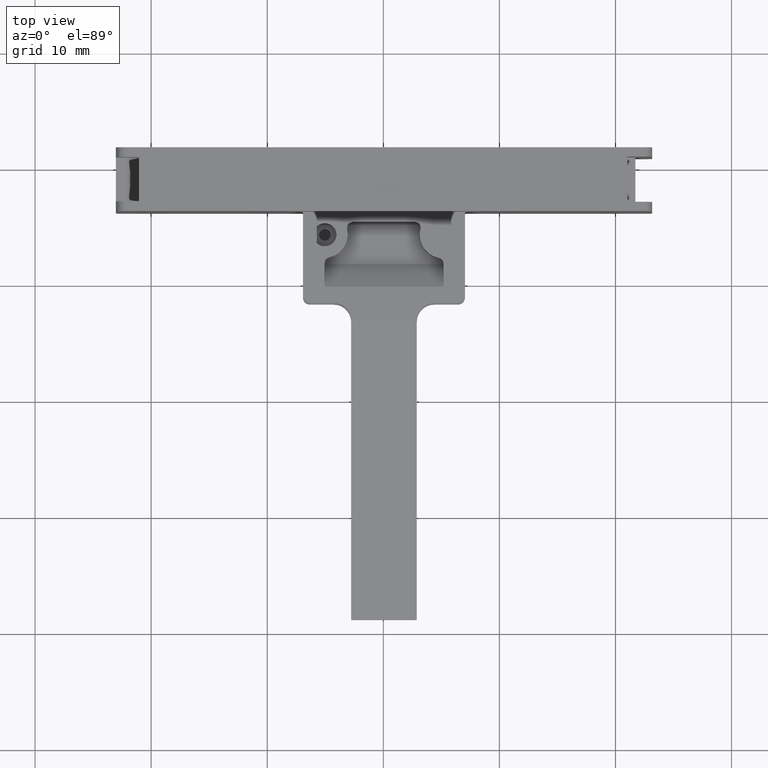
[diagram: clean part render]
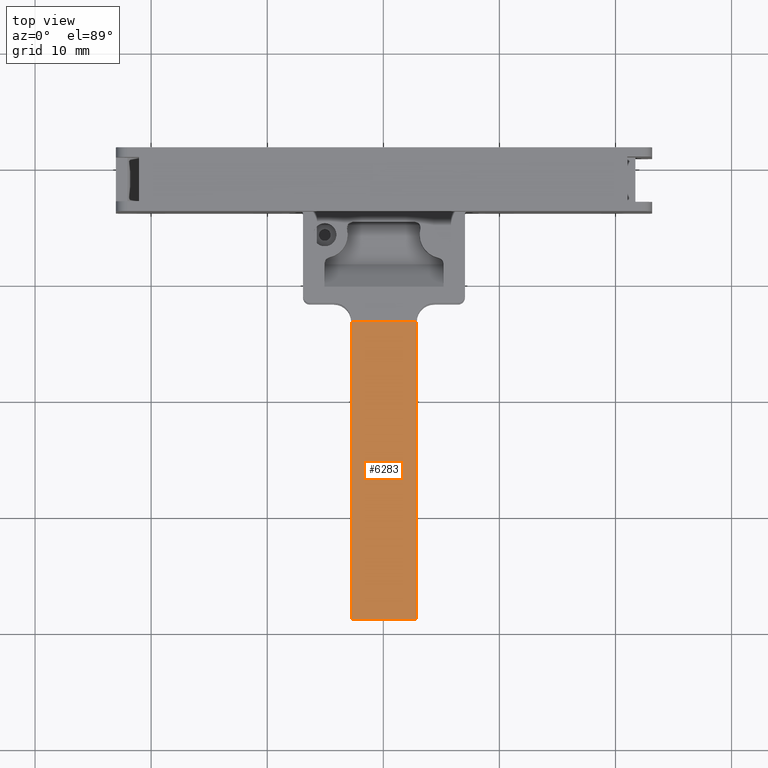
[diagram: same view with one face highlighted and labeled with its STEP entity id]
A machine part, top view. The second image highlights one B-rep face of the part: STEP entity #6283.
In plain terms, the highlighted planar face has unit normal (-0, 0.0741, -0.9973).
Its self-contained STEP definition (entity closure, byte-faithful):
#25 = CARTESIAN_POINT ( 'NONE',  ( -442.7670890845456600, 136.7683711151932800, 18.75106308538597900 ) ) ;
#1049 = PLANE ( 'NONE',  #7502 ) ;
#1102 = DIRECTION ( 'NONE',  ( -1.877905660495668700E-029, 0.07410849019539635100, -0.9972501850994859300 ) ) ;
#1113 = CARTESIAN_POINT ( 'NONE',  ( -437.0420890845463200, 114.0359179401236400, 17.06175000386076600 ) ) ;
#1133 = FACE_OUTER_BOUND ( 'NONE', #5246, .T. ) ;
#1136 = DIRECTION ( 'NONE',  ( 0.0000000000000000000, 0.9972501850994858200, 0.07410849019539633700 ) ) ;
#1440 = ORIENTED_EDGE ( 'NONE', *, *, #6860, .T. ) ;
#1471 = ORIENTED_EDGE ( 'NONE', *, *, #6767, .F. ) ;
#1476 = ORIENTED_EDGE ( 'NONE', *, *, #6766, .F. ) ;
#1501 = ORIENTED_EDGE ( 'NONE', *, *, #6732, .F. ) ;
#2087 = CARTESIAN_POINT ( 'NONE',  ( -437.1170890845459100, 111.1357840286138300, 16.84623282596721700 ) ) ;
#2097 = CARTESIAN_POINT ( 'NONE',  ( -437.1170890845459100, 136.7683711151933600, 18.75106308538595800 ) ) ;
#2151 = CARTESIAN_POINT ( 'NONE',  ( -442.7670890845464000, 111.1357840286138300, 16.84623282596721700 ) ) ;
#2771 = LINE ( 'NONE', #2801, #7165 ) ;
#2774 = DIRECTION ( 'NONE',  ( -1.000000000000000000, 5.889668107038218400E-044, 1.877905660495670100E-029 ) ) ;
#2801 = CARTESIAN_POINT ( 'NONE',  ( -437.0420890845463200, 136.7683711151933600, 18.75106308538593700 ) ) ;
#3673 = CARTESIAN_POINT ( 'NONE',  ( -437.1170890845459100, 114.0359179401236400, 17.06175000386076600 ) ) ;
#3682 = LINE ( 'NONE', #3673, #7009 ) ;
#3683 = DIRECTION ( 'NONE',  ( -0.0000000000000000000, -0.9972501850994858200, -0.07410849019539633700 ) ) ;
#3756 = DIRECTION ( 'NONE',  ( -1.000000000000000000, -1.391687532287225400E-030, 1.872741767528678000E-029 ) ) ;
#3764 = LINE ( 'NONE', #3796, #7071 ) ;
#3781 = LINE ( 'NONE', #3797, #7075 ) ;
#3794 = DIRECTION ( 'NONE',  ( 0.0000000000000000000, 0.9972501850994858200, 0.07410849019539633700 ) ) ;
#3796 = CARTESIAN_POINT ( 'NONE',  ( -437.0420890845463200, 111.1357840286138300, 16.84623282596721700 ) ) ;
#3797 = CARTESIAN_POINT ( 'NONE',  ( -442.7670890845464600, 114.0359179401236400, 17.06175000386076600 ) ) ;
#4661 = VERTEX_POINT ( 'NONE', #2097 ) ;
#4671 = VERTEX_POINT ( 'NONE', #2087 ) ;
#4725 = VERTEX_POINT ( 'NONE', #2151 ) ;
#5246 = EDGE_LOOP ( 'NONE', ( #1471, #1501, #1440, #1476 ) ) ;
#6063 = VERTEX_POINT ( 'NONE', #25 ) ;
#6283 = ADVANCED_FACE ( 'NONE', ( #1133 ), #1049, .F. ) ;
#6732 = EDGE_CURVE ( 'NONE', #4661, #4671, #3682, .T. ) ;
#6766 = EDGE_CURVE ( 'NONE', #4725, #6063, #3781, .T. ) ;
#6767 = EDGE_CURVE ( 'NONE', #4671, #4725, #3764, .T. ) ;
#6860 = EDGE_CURVE ( 'NONE', #4661, #6063, #2771, .T. ) ;
#7009 = VECTOR ( 'NONE', #3683, 1000.000000000000100 ) ;
#7071 = VECTOR ( 'NONE', #3756, 1000.000000000000000 ) ;
#7075 = VECTOR ( 'NONE', #3794, 1000.000000000000100 ) ;
#7165 = VECTOR ( 'NONE', #2774, 1000.000000000000000 ) ;
#7502 = AXIS2_PLACEMENT_3D ( 'NONE', #1113, #1102, #1136 ) ;